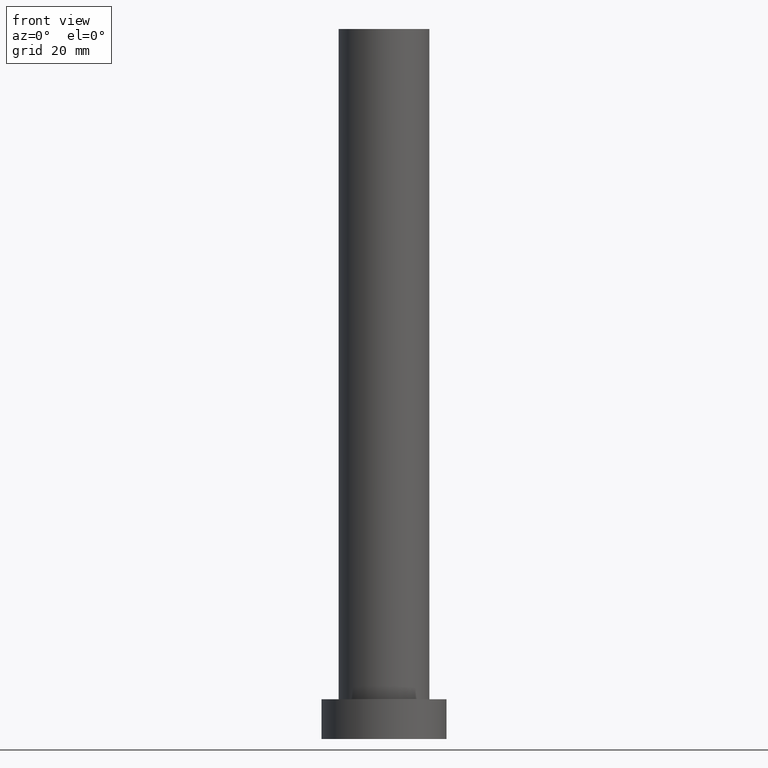
[diagram: clean part render]
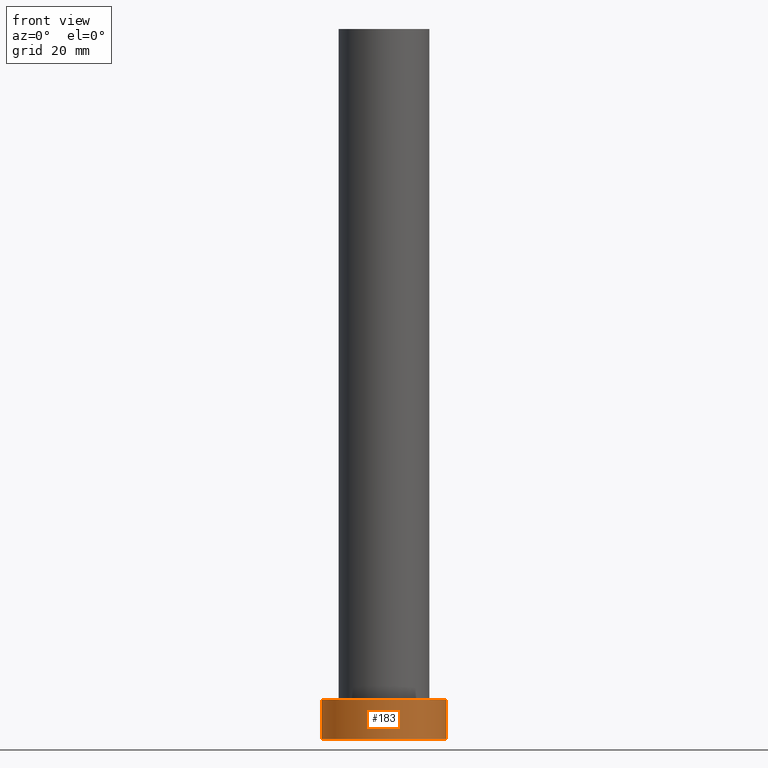
[diagram: same view with one face highlighted and labeled with its STEP entity id]
A machine part, front view. The second image highlights one B-rep face of the part: STEP entity #183.
In plain terms, the highlighted cylindrical surface (partial cylindrical patch) has radius 11 mm, axis along (-0, -0, -1).
Its self-contained STEP definition (entity closure, byte-faithful):
#3 = CARTESIAN_POINT ( 'NONE',  ( 0.000000000000000000, 0.000000000000000000, 0.000000000000000000 ) ) ;
#9 = ORIENTED_EDGE ( 'NONE', *, *, #112, .F. ) ;
#14 = AXIS2_PLACEMENT_3D ( 'NONE', #3, #21, #129 ) ;
#21 = DIRECTION ( 'NONE',  ( 0.000000000000000000, 0.000000000000000000, 1.000000000000000000 ) ) ;
#40 = CARTESIAN_POINT ( 'NONE',  ( -11.00000000000000000, 0.000000000000000000, 7.000000000000000000 ) ) ;
#47 = AXIS2_PLACEMENT_3D ( 'NONE', #133, #235, #113 ) ;
#55 = LINE ( 'NONE', #144, #154 ) ;
#56 = ORIENTED_EDGE ( 'NONE', *, *, #187, .F. ) ;
#78 = DIRECTION ( 'NONE',  ( -0.000000000000000000, -0.000000000000000000, -1.000000000000000000 ) ) ;
#80 = ORIENTED_EDGE ( 'NONE', *, *, #156, .T. ) ;
#90 = DIRECTION ( 'NONE',  ( -0.000000000000000000, -0.000000000000000000, -1.000000000000000000 ) ) ;
#102 = LINE ( 'NONE', #182, #247 ) ;
#106 = CARTESIAN_POINT ( 'NONE',  ( 11.00000000000000000, 1.347111479062088405E-15, 0.000000000000000000 ) ) ;
#107 = EDGE_CURVE ( 'NONE', #246, #162, #102, .T. ) ;
#109 = AXIS2_PLACEMENT_3D ( 'NONE', #169, #90, #153 ) ;
#112 = EDGE_CURVE ( 'NONE', #214, #250, #55, .T. ) ;
#113 = DIRECTION ( 'NONE',  ( 1.000000000000000000, 0.000000000000000000, 0.000000000000000000 ) ) ;
#129 = DIRECTION ( 'NONE',  ( 1.000000000000000000, 0.000000000000000000, 0.000000000000000000 ) ) ;
#131 = FACE_OUTER_BOUND ( 'NONE', #234, .T. ) ;
#133 = CARTESIAN_POINT ( 'NONE',  ( 0.000000000000000000, 0.000000000000000000, 7.000000000000000000 ) ) ;
#135 = CYLINDRICAL_SURFACE ( 'NONE', #109, 11.00000000000000000 ) ;
#144 = CARTESIAN_POINT ( 'NONE',  ( 11.00000000000000000, 1.347111479062088405E-15, 7.000000000000000000 ) ) ;
#153 = DIRECTION ( 'NONE',  ( -1.000000000000000000, 0.000000000000000000, 0.000000000000000000 ) ) ;
#154 = VECTOR ( 'NONE', #218, 1000.000000000000000 ) ;
#156 = EDGE_CURVE ( 'NONE', #162, #250, #227, .T. ) ;
#162 = VERTEX_POINT ( 'NONE', #189 ) ;
#169 = CARTESIAN_POINT ( 'NONE',  ( 0.000000000000000000, 0.000000000000000000, 7.000000000000000000 ) ) ;
#171 = CIRCLE ( 'NONE', #47, 11.00000000000000000 ) ;
#182 = CARTESIAN_POINT ( 'NONE',  ( -11.00000000000000000, 0.000000000000000000, 7.000000000000000000 ) ) ;
#183 = ADVANCED_FACE ( 'NONE', ( #131 ), #135, .T. ) ;
#187 = EDGE_CURVE ( 'NONE', #246, #214, #171, .T. ) ;
#189 = CARTESIAN_POINT ( 'NONE',  ( -11.00000000000000000, 0.000000000000000000, 0.000000000000000000 ) ) ;
#214 = VERTEX_POINT ( 'NONE', #241 ) ;
#218 = DIRECTION ( 'NONE',  ( -0.000000000000000000, -0.000000000000000000, -1.000000000000000000 ) ) ;
#227 = CIRCLE ( 'NONE', #14, 11.00000000000000000 ) ;
#234 = EDGE_LOOP ( 'NONE', ( #9, #56, #254, #80 ) ) ;
#235 = DIRECTION ( 'NONE',  ( 0.000000000000000000, 0.000000000000000000, 1.000000000000000000 ) ) ;
#241 = CARTESIAN_POINT ( 'NONE',  ( 11.00000000000000000, 1.347111479062088405E-15, 7.000000000000000000 ) ) ;
#246 = VERTEX_POINT ( 'NONE', #40 ) ;
#247 = VECTOR ( 'NONE', #78, 1000.000000000000000 ) ;
#250 = VERTEX_POINT ( 'NONE', #106 ) ;
#254 = ORIENTED_EDGE ( 'NONE', *, *, #107, .T. ) ;